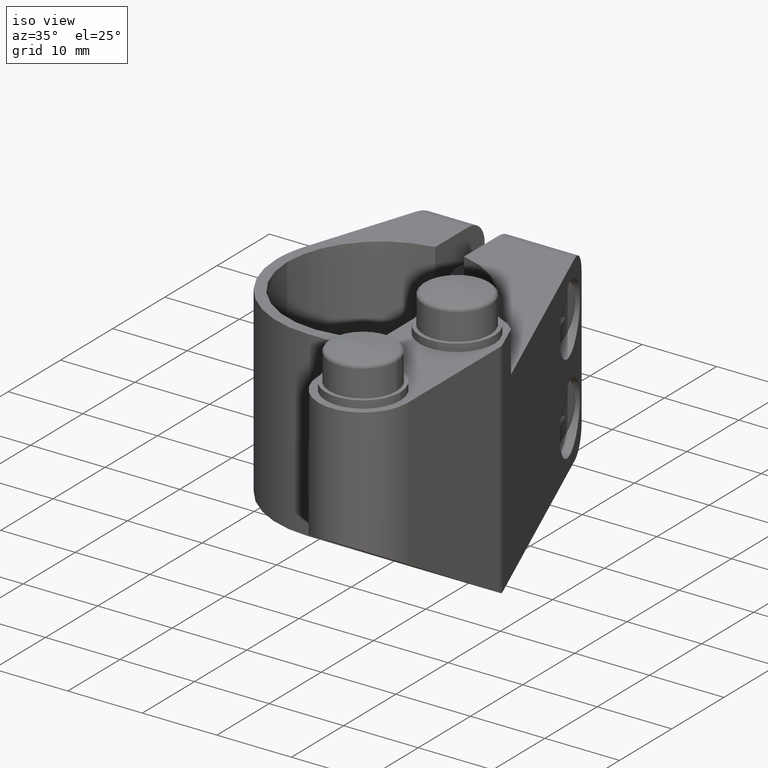
[diagram: clean part render]
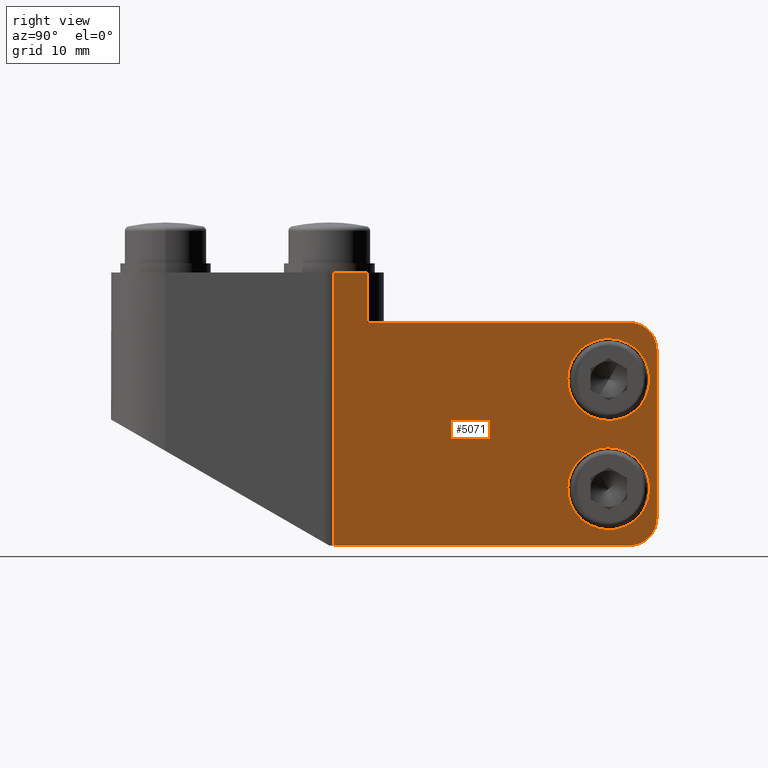
[diagram: tour spotlight — one face highlighted and labeled with its STEP entity id]
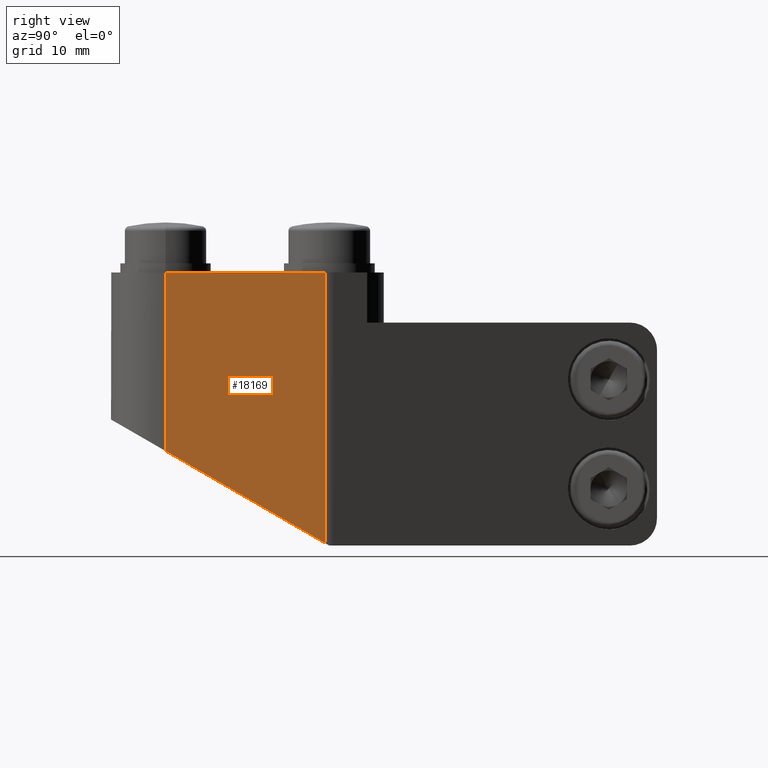
[diagram: tour spotlight — one face highlighted and labeled with its STEP entity id]
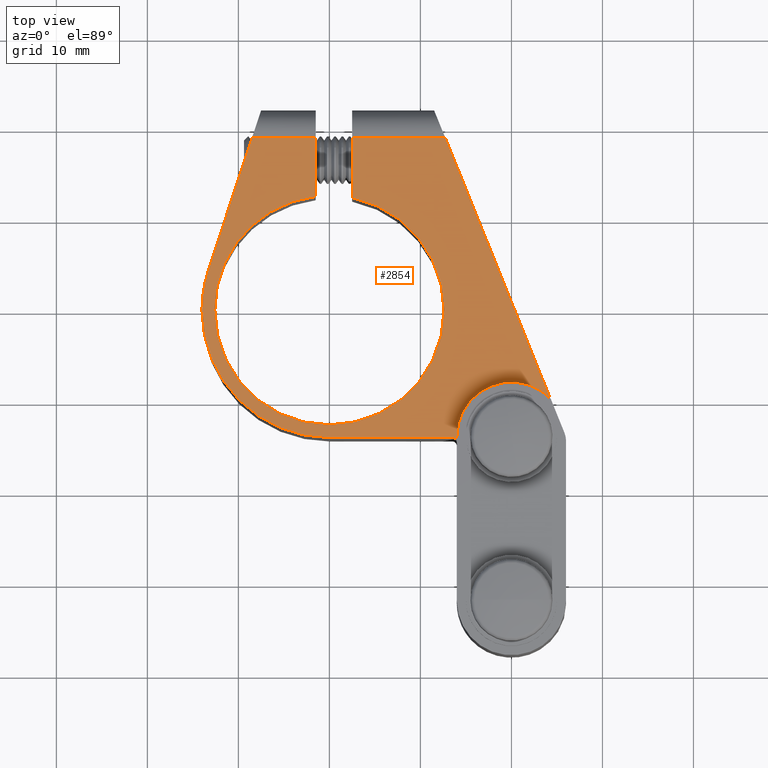
[diagram: tour spotlight — one face highlighted and labeled with its STEP entity id]
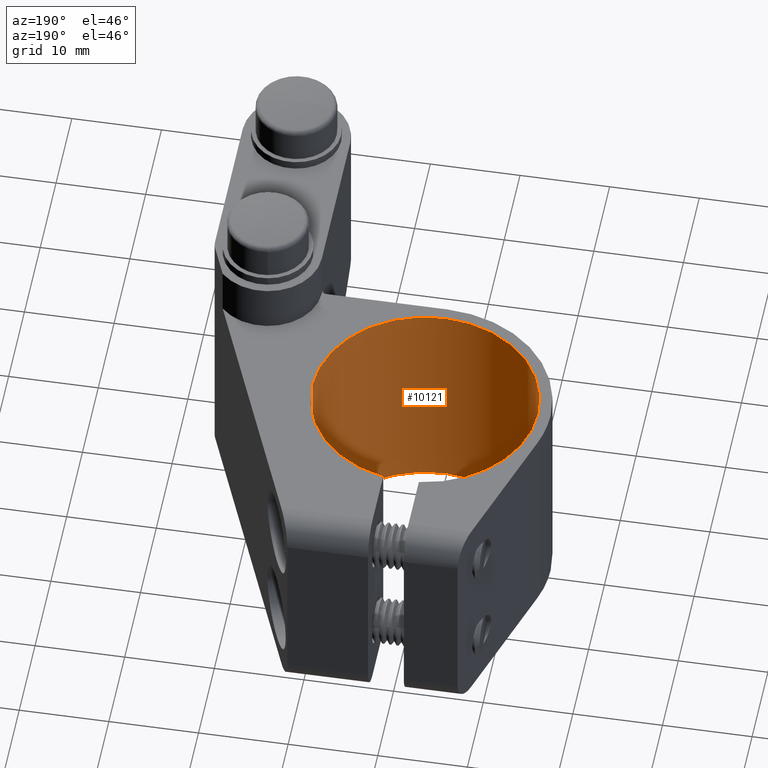
[diagram: tour spotlight — one face highlighted and labeled with its STEP entity id]
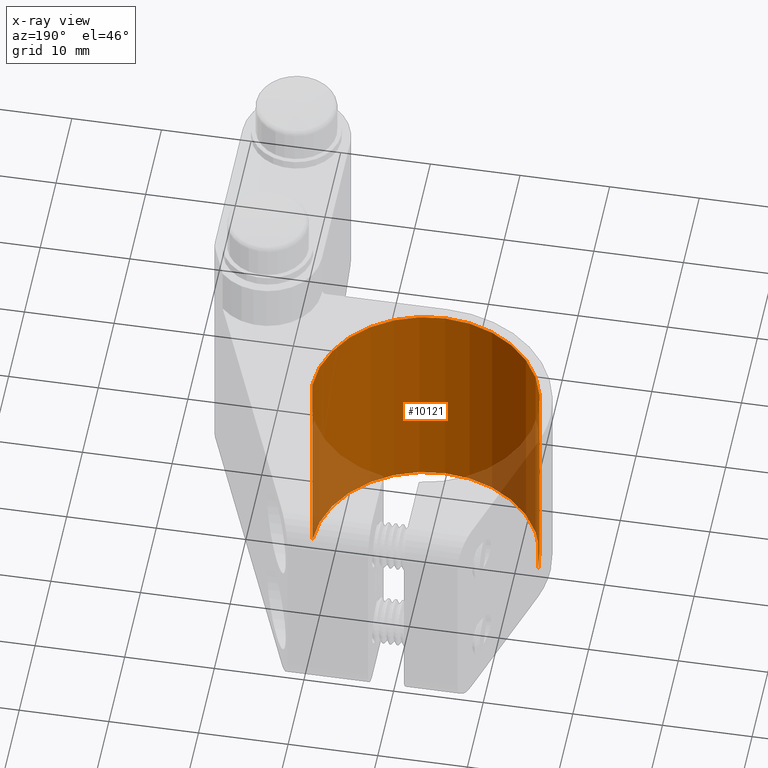
[diagram: x-ray of the same camera — body ghosted, this tour face saturated]
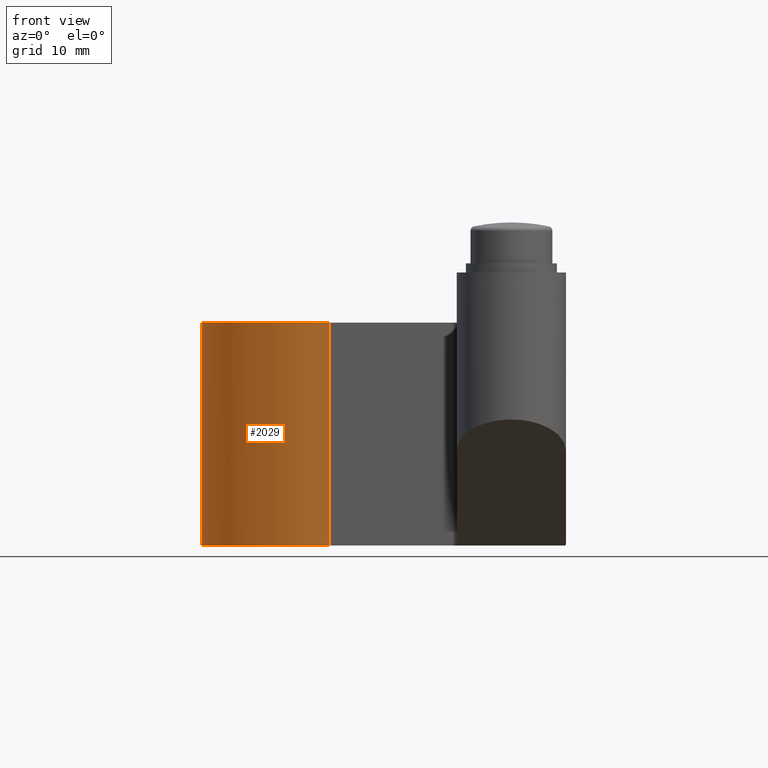
[diagram: tour spotlight — one face highlighted and labeled with its STEP entity id]
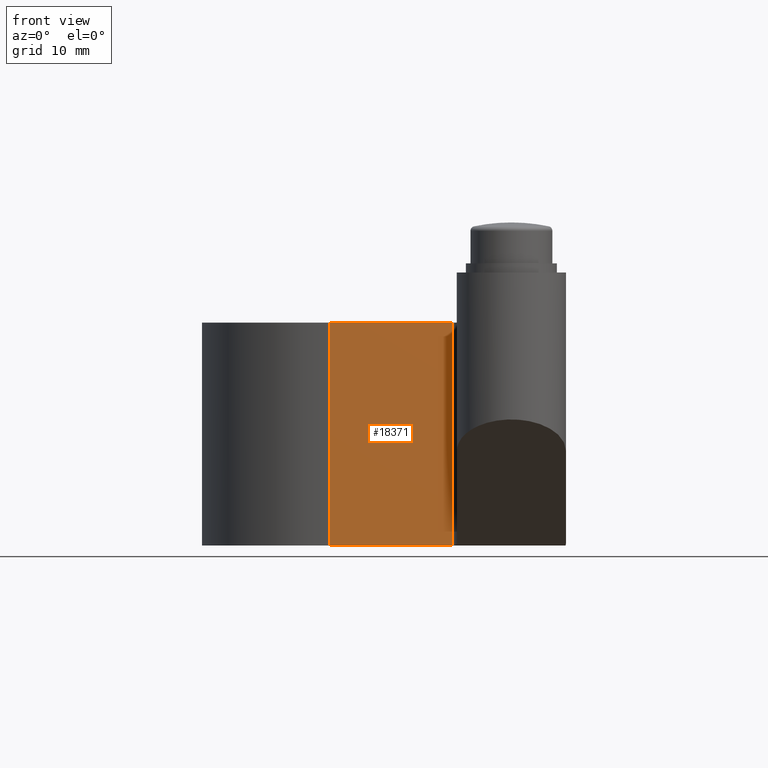
[diagram: tour spotlight — one face highlighted and labeled with its STEP entity id]
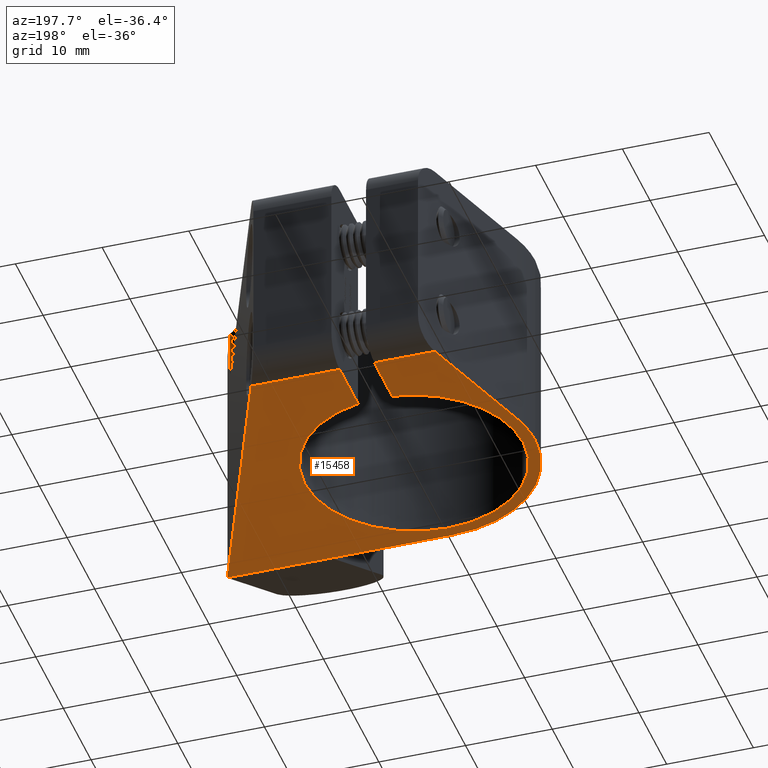
[diagram: tour spotlight — one face highlighted and labeled with its STEP entity id]
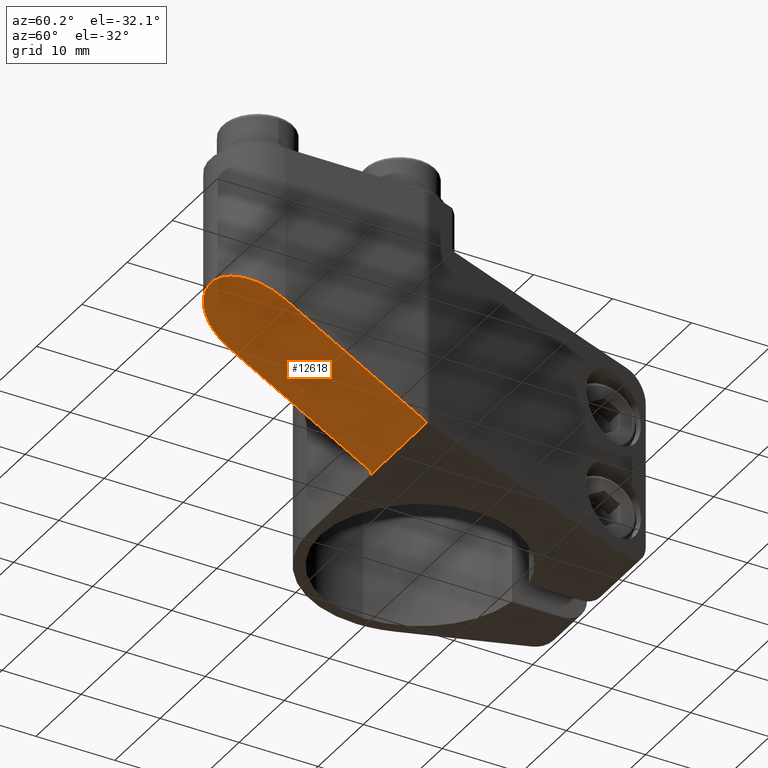
[diagram: tour spotlight — one face highlighted and labeled with its STEP entity id]
A machine part: a face-by-face anatomy tour. The part has 587 B-rep faces; the first image is the clean iso view, then the 8 largest visible faces are spotlighted one at a time (largest first), each with its STEP entity span.

Face 1 — right view, entity #5071. In plain terms, the highlighted planar face has unit normal (-0.9276, -0.3736, 0).
Definition (entity closure, byte-faithful):
#156 = VECTOR ( 'NONE', #1506, 1000.000000000000000 ) ;
#167 = DIRECTION ( 'NONE',  ( -0.3736108433124820700, 0.9275855420171963400, -0.0000000000000000000 ) ) ;
#525 = CARTESIAN_POINT ( 'NONE',  ( 25.81896385504299500, -13.55053095045156500, 17.75000000000000400 ) ) ;
#641 = CARTESIAN_POINT ( 'NONE',  ( 11.49999999999999600, 21.99999999999999600, -9.250000000000001800 ) ) ;
#776 = EDGE_CURVE ( 'NONE', #16145, #9897, #878, .T. ) ;
#779 = FACE_BOUND ( 'NONE', #2663, .T. ) ;
#878 =( BOUNDED_CURVE ( )  B_SPLINE_CURVE ( 3, ( #5187, #3345, #9414, #8066 ),
 .UNSPECIFIED., .F., .F. ) 
 B_SPLINE_CURVE_WITH_KNOTS ( ( 4, 4 ),
 ( 4.712388980384689700, 7.853981633974482800 ),
 .UNSPECIFIED. ) 
 CURVE ( )  GEOMETRIC_REPRESENTATION_ITEM ( )  RATIONAL_B_SPLINE_CURVE ( ( 1.000000000000000000, 0.3333333333333333700, 0.3333333333333333700, 1.000000000000000000 ) ) 
 REPRESENTATION_ITEM ( '' )  );
#1010 = VECTOR ( 'NONE', #167, 1000.000000000000200 ) ;
#1028 = CARTESIAN_POINT ( 'NONE',  ( 17.25972222222222300, 7.699999999999998400, -1.499999999999999600 ) ) ;
#1396 = VERTEX_POINT ( 'NONE', #18148 ) ;
#1506 = DIRECTION ( 'NONE',  ( -0.0000000000000000000, -0.0000000000000000000, -1.000000000000000000 ) ) ;
#1674 = CARTESIAN_POINT ( 'NONE',  ( 13.63472222222221800, 16.69999999999999900, -1.499999999999999600 ) ) ;
#2181 = CARTESIAN_POINT ( 'NONE',  ( 12.70833333333333000, 18.99999999999999600, -12.25000000000000000 ) ) ;
#2227 =( BOUNDED_CURVE ( )  B_SPLINE_CURVE ( 3, ( #10295, #8584, #1028, #2382 ),
 .UNSPECIFIED., .F., .F. ) 
 B_SPLINE_CURVE_WITH_KNOTS ( ( 4, 4 ),
 ( 4.712388980384689700, 7.853981633974482800 ),
 .UNSPECIFIED. ) 
 CURVE ( )  GEOMETRIC_REPRESENTATION_ITEM ( )  RATIONAL_B_SPLINE_CURVE ( ( 1.000000000000000000, 0.3333333333333333700, 0.3333333333333333700, 1.000000000000000000 ) ) 
 REPRESENTATION_ITEM ( '' )  );
#2260 = EDGE_CURVE ( 'NONE', #5280, #1396, #7834, .T. ) ;
#2289 = VERTEX_POINT ( 'NONE', #14069 ) ;
#2382 = CARTESIAN_POINT ( 'NONE',  ( 13.63472222222221800, 16.69999999999999900, -1.499999999999999600 ) ) ;
#2520 = EDGE_CURVE ( 'NONE', #5431, #3105, #19714, .T. ) ;
#2652 = DIRECTION ( 'NONE',  ( -0.3736108433124820700, 0.9275855420171963400, -0.0000000000000000000 ) ) ;
#2663 = EDGE_LOOP ( 'NONE', ( #6080, #9193 ) ) ;
#3001 = ORIENTED_EDGE ( 'NONE', *, *, #4731, .F. ) ;
#3092 = CARTESIAN_POINT ( 'NONE',  ( 13.63472222222221800, 16.69999999999999900, -10.50000000000000000 ) ) ;
#3105 = VERTEX_POINT ( 'NONE', #18213 ) ;
#3223 = CARTESIAN_POINT ( 'NONE',  ( 10.00972222222221600, 25.70000000000000300, -1.499999999999998200 ) ) ;
#3345 = CARTESIAN_POINT ( 'NONE',  ( 17.25972222222222300, 7.699999999999998400, 1.499999999999996900 ) ) ;
#3555 = ORIENTED_EDGE ( 'NONE', *, *, #17488, .T. ) ;
#3681 = ORIENTED_EDGE ( 'NONE', *, *, #9436, .T. ) ;
#3749 = CARTESIAN_POINT ( 'NONE',  ( 12.70833333333333000, 18.99999999999999600, -12.25000000000000000 ) ) ;
#3790 = VERTEX_POINT ( 'NONE', #13504 ) ;
#4047 = CARTESIAN_POINT ( 'NONE',  ( 13.63472222222221800, 16.69999999999999900, 10.50000000000000000 ) ) ;
#4088 = DIRECTION ( 'NONE',  ( -0.9275855420171964500, -0.3736108433124821200, 0.0000000000000000000 ) ) ;
#4213 = CARTESIAN_POINT ( 'NONE',  ( 11.49999999999999600, 21.99999999999999600, -12.25000000000000000 ) ) ;
#4731 = EDGE_CURVE ( 'NONE', #3105, #6493, #9222, .T. ) ;
#5066 = ORIENTED_EDGE ( 'NONE', *, *, #14103, .F. ) ;
#5071 = ADVANCED_FACE ( 'NONE', ( #18480, #779, #16779 ), #13585, .F. ) ;
#5187 = CARTESIAN_POINT ( 'NONE',  ( 13.63472222222221800, 16.69999999999999900, 1.499999999999999600 ) ) ;
#5280 = VERTEX_POINT ( 'NONE', #525 ) ;
#5431 = VERTEX_POINT ( 'NONE', #12995 ) ;
#5631 = CARTESIAN_POINT ( 'NONE',  ( 10.00972222222221600, 25.70000000000000300, 1.500000000000000400 ) ) ;
#5708 = VECTOR ( 'NONE', #17313, 1000.000000000000000 ) ;
#5721 = VERTEX_POINT ( 'NONE', #13731 ) ;
#5948 = CARTESIAN_POINT ( 'NONE',  ( 11.49999999999999600, 21.99999999999999600, 12.25000000000000000 ) ) ;
#6050 = ORIENTED_EDGE ( 'NONE', *, *, #8729, .T. ) ;
#6080 = ORIENTED_EDGE ( 'NONE', *, *, #776, .T. ) ;
#6493 = VERTEX_POINT ( 'NONE', #16957 ) ;
#7095 = ORIENTED_EDGE ( 'NONE', *, *, #18449, .F. ) ;
#7159 =( BOUNDED_CURVE ( )  B_SPLINE_CURVE ( 3, ( #1674, #3223, #15580, #3092 ),
 .UNSPECIFIED., .F., .F. ) 
 B_SPLINE_CURVE_WITH_KNOTS ( ( 4, 4 ),
 ( 1.570796326794896600, 4.712388980384689700 ),
 .UNSPECIFIED. ) 
 CURVE ( )  GEOMETRIC_REPRESENTATION_ITEM ( )  RATIONAL_B_SPLINE_CURVE ( ( 1.000000000000000000, 0.3333333333333333700, 0.3333333333333333700, 1.000000000000000000 ) ) 
 REPRESENTATION_ITEM ( '' )  );
#7790 =( BOUNDED_CURVE ( )  B_SPLINE_CURVE ( 3, ( #9565, #7935, #18793, #7796 ),
 .UNSPECIFIED., .F., .F. ) 
 B_SPLINE_CURVE_WITH_KNOTS ( ( 4, 4 ),
 ( 3.141592653589793100, 4.712388980384689700 ),
 .UNSPECIFIED. ) 
 CURVE ( )  GEOMETRIC_REPRESENTATION_ITEM ( )  RATIONAL_B_SPLINE_CURVE ( ( 1.000000000000000000, 0.8047378541243649400, 0.8047378541243649400, 1.000000000000000000 ) ) 
 REPRESENTATION_ITEM ( '' )  );
#7796 = CARTESIAN_POINT ( 'NONE',  ( 12.70833333333333000, 18.99999999999999600, 12.25000000000000000 ) ) ;
#7834 = LINE ( 'NONE', #13937, #5708 ) ;
#7935 = CARTESIAN_POINT ( 'NONE',  ( 11.49999999999999300, 22.00000000000000400, 11.00735931288071400 ) ) ;
#7950 = LINE ( 'NONE', #14249, #15255 ) ;
#8066 = CARTESIAN_POINT ( 'NONE',  ( 13.63472222222221800, 16.69999999999999900, 10.50000000000000000 ) ) ;
#8584 = CARTESIAN_POINT ( 'NONE',  ( 17.25972222222222300, 7.699999999999998400, -10.50000000000000400 ) ) ;
#8729 = EDGE_CURVE ( 'NONE', #5721, #6493, #7790, .T. ) ;
#8737 = CARTESIAN_POINT ( 'NONE',  ( 11.49999999999999600, 21.99999999999999600, 12.25000000000000000 ) ) ;
#9015 =( BOUNDED_CURVE ( )  B_SPLINE_CURVE ( 3, ( #4047, #19431, #5631, #18011 ),
 .UNSPECIFIED., .F., .F. ) 
 B_SPLINE_CURVE_WITH_KNOTS ( ( 4, 4 ),
 ( 1.570796326794896600, 4.712388980384689700 ),
 .UNSPECIFIED. ) 
 CURVE ( )  GEOMETRIC_REPRESENTATION_ITEM ( )  RATIONAL_B_SPLINE_CURVE ( ( 1.000000000000000000, 0.3333333333333333700, 0.3333333333333333700, 1.000000000000000000 ) ) 
 REPRESENTATION_ITEM ( '' )  );
#9193 = ORIENTED_EDGE ( 'NONE', *, *, #14689, .T. ) ;
#9222 = LINE ( 'NONE', #5948, #1010 ) ;
#9414 = CARTESIAN_POINT ( 'NONE',  ( 17.25972222222222300, 7.699999999999998400, 10.50000000000000200 ) ) ;
#9436 = EDGE_CURVE ( 'NONE', #1396, #11903, #17575, .T. ) ;
#9565 = CARTESIAN_POINT ( 'NONE',  ( 11.49999999999999600, 21.99999999999999600, 9.250000000000001800 ) ) ;
#9897 = VERTEX_POINT ( 'NONE', #13745 ) ;
#10295 = CARTESIAN_POINT ( 'NONE',  ( 13.63472222222221800, 16.69999999999999900, -10.50000000000000000 ) ) ;
#10517 = AXIS2_PLACEMENT_3D ( 'NONE', #8737, #4088, #16682 ) ;
#10615 = CARTESIAN_POINT ( 'NONE',  ( 24.32497925311203300, -9.841327800829875000, 17.75000000000000400 ) ) ;
#10846 = EDGE_CURVE ( 'NONE', #3790, #18407, #2227, .T. ) ;
#11613 = EDGE_CURVE ( 'NONE', #11903, #2289, #13411, .T. ) ;
#11903 = VERTEX_POINT ( 'NONE', #2181 ) ;
#12995 = CARTESIAN_POINT ( 'NONE',  ( 24.32497925311203300, -9.841327800829875000, 17.75000000000000400 ) ) ;
#13411 =( BOUNDED_CURVE ( )  B_SPLINE_CURVE ( 3, ( #3749, #19405, #16098, #641 ),
 .UNSPECIFIED., .F., .F. ) 
 B_SPLINE_CURVE_WITH_KNOTS ( ( 4, 4 ),
 ( 4.712388980384689700, 6.283185307179586200 ),
 .UNSPECIFIED. ) 
 CURVE ( )  GEOMETRIC_REPRESENTATION_ITEM ( )  RATIONAL_B_SPLINE_CURVE ( ( 1.000000000000000000, 0.8047378541243649400, 0.8047378541243649400, 1.000000000000000000 ) ) 
 REPRESENTATION_ITEM ( '' )  );
#13474 = LINE ( 'NONE', #19988, #156 ) ;
#13504 = CARTESIAN_POINT ( 'NONE',  ( 13.63472222222221800, 16.69999999999999900, -10.50000000000000000 ) ) ;
#13511 = CARTESIAN_POINT ( 'NONE',  ( 13.63472222222221800, 16.69999999999999900, -1.499999999999999600 ) ) ;
#13585 = PLANE ( 'NONE',  #10517 ) ;
#13731 = CARTESIAN_POINT ( 'NONE',  ( 11.49999999999999600, 21.99999999999999600, 9.250000000000001800 ) ) ;
#13745 = CARTESIAN_POINT ( 'NONE',  ( 13.63472222222221800, 16.69999999999999900, 10.50000000000000000 ) ) ;
#13937 = CARTESIAN_POINT ( 'NONE',  ( 25.81896385504299500, -13.55053095045155900, 12.25000000000000000 ) ) ;
#14069 = CARTESIAN_POINT ( 'NONE',  ( 11.49999999999999600, 21.99999999999999600, -9.250000000000001800 ) ) ;
#14103 = EDGE_CURVE ( 'NONE', #5280, #5431, #7950, .T. ) ;
#14249 = CARTESIAN_POINT ( 'NONE',  ( 26.00000000000000400, -14.00000000000000000, 17.75000000000000400 ) ) ;
#14689 = EDGE_CURVE ( 'NONE', #9897, #16145, #9015, .T. ) ;
#15189 = EDGE_LOOP ( 'NONE', ( #3555, #20016 ) ) ;
#15253 = ORIENTED_EDGE ( 'NONE', *, *, #2520, .F. ) ;
#15255 = VECTOR ( 'NONE', #18919, 1000.000000000000100 ) ;
#15373 = VECTOR ( 'NONE', #18443, 1000.000000000000000 ) ;
#15580 = CARTESIAN_POINT ( 'NONE',  ( 10.00972222222221600, 25.70000000000000300, -10.50000000000000000 ) ) ;
#16098 = CARTESIAN_POINT ( 'NONE',  ( 11.49999999999999300, 22.00000000000000400, -11.00735931288071400 ) ) ;
#16145 = VERTEX_POINT ( 'NONE', #18622 ) ;
#16653 = ORIENTED_EDGE ( 'NONE', *, *, #11613, .T. ) ;
#16682 = DIRECTION ( 'NONE',  ( 0.3736108433124820700, -0.9275855420171963400, 0.0000000000000000000 ) ) ;
#16779 = FACE_OUTER_BOUND ( 'NONE', #19664, .T. ) ;
#16957 = CARTESIAN_POINT ( 'NONE',  ( 12.70833333333333000, 18.99999999999999600, 12.25000000000000000 ) ) ;
#17090 = VECTOR ( 'NONE', #2652, 1000.000000000000200 ) ;
#17313 = DIRECTION ( 'NONE',  ( 0.0000000000000000000, 0.0000000000000000000, -1.000000000000000000 ) ) ;
#17488 = EDGE_CURVE ( 'NONE', #18407, #3790, #7159, .T. ) ;
#17575 = LINE ( 'NONE', #4213, #17090 ) ;
#18011 = CARTESIAN_POINT ( 'NONE',  ( 13.63472222222221800, 16.69999999999999900, 1.499999999999999600 ) ) ;
#18148 = CARTESIAN_POINT ( 'NONE',  ( 25.81896385504299500, -13.55053095045155900, -12.25000000000000000 ) ) ;
#18213 = CARTESIAN_POINT ( 'NONE',  ( 24.32497925311203300, -9.841327800829875000, 12.25000000000000000 ) ) ;
#18407 = VERTEX_POINT ( 'NONE', #13511 ) ;
#18443 = DIRECTION ( 'NONE',  ( -0.0000000000000000000, -0.0000000000000000000, -1.000000000000000000 ) ) ;
#18449 = EDGE_CURVE ( 'NONE', #5721, #2289, #13474, .T. ) ;
#18480 = FACE_BOUND ( 'NONE', #15189, .T. ) ;
#18622 = CARTESIAN_POINT ( 'NONE',  ( 13.63472222222221800, 16.69999999999999900, 1.499999999999999600 ) ) ;
#18793 = CARTESIAN_POINT ( 'NONE',  ( 12.00050805453415000, 20.75735931288070900, 12.25000000000000000 ) ) ;
#18919 = DIRECTION ( 'NONE',  ( -0.3736108433124819600, 0.9275855420171963400, 0.0000000000000000000 ) ) ;
#19405 = CARTESIAN_POINT ( 'NONE',  ( 12.00050805453415000, 20.75735931288070900, -12.25000000000000000 ) ) ;
#19431 = CARTESIAN_POINT ( 'NONE',  ( 10.00972222222221600, 25.70000000000000300, 10.50000000000000200 ) ) ;
#19664 = EDGE_LOOP ( 'NONE', ( #5066, #20036, #3681, #16653, #7095, #6050, #3001, #15253 ) ) ;
#19714 = LINE ( 'NONE', #10615, #15373 ) ;
#19988 = CARTESIAN_POINT ( 'NONE',  ( 11.49999999999999600, 21.99999999999999600, 12.25000000000000000 ) ) ;
#20016 = ORIENTED_EDGE ( 'NONE', *, *, #10846, .T. ) ;
#20036 = ORIENTED_EDGE ( 'NONE', *, *, #2260, .T. ) ;

Face 2 — right view, entity #18169. In plain terms, the highlighted planar face has unit normal (-1, -0, 0).
Definition (entity closure, byte-faithful):
#696 = VECTOR ( 'NONE', #5989, 1000.000000000000000 ) ;
#1014 = VECTOR ( 'NONE', #9706, 1000.000000000000000 ) ;
#1405 = ORIENTED_EDGE ( 'NONE', *, *, #14722, .F. ) ;
#2061 = LINE ( 'NONE', #15908, #5729 ) ;
#2921 = VERTEX_POINT ( 'NONE', #11570 ) ;
#3170 = LINE ( 'NONE', #8219, #1014 ) ;
#3416 = ORIENTED_EDGE ( 'NONE', *, *, #17755, .T. ) ;
#3540 = CARTESIAN_POINT ( 'NONE',  ( 26.00000000000000400, -14.00000000000000000, 12.25000000000000000 ) ) ;
#5221 = ORIENTED_EDGE ( 'NONE', *, *, #12801, .F. ) ;
#5652 = CARTESIAN_POINT ( 'NONE',  ( 26.00000000000000400, -13.99999999999999800, -12.25000000000000000 ) ) ;
#5729 = VECTOR ( 'NONE', #6625, 1000.000000000000000 ) ;
#5989 = DIRECTION ( 'NONE',  ( 1.251928832280970900E-016, -0.8660254037844417100, 0.4999999999999947800 ) ) ;
#6157 = EDGE_LOOP ( 'NONE', ( #1405, #10520, #5221, #3416 ) ) ;
#6524 = LINE ( 'NONE', #13397, #14037 ) ;
#6625 = DIRECTION ( 'NONE',  ( 0.0000000000000000000, 0.0000000000000000000, -1.000000000000000000 ) ) ;
#7215 = VERTEX_POINT ( 'NONE', #10439 ) ;
#7696 = LINE ( 'NONE', #5652, #696 ) ;
#8204 = EDGE_CURVE ( 'NONE', #16508, #7215, #6524, .T. ) ;
#8219 = CARTESIAN_POINT ( 'NONE',  ( 26.00000000000000700, -32.00000000000000000, 17.75000000000000400 ) ) ;
#9215 = CARTESIAN_POINT ( 'NONE',  ( 26.00000000000000400, -14.48455805873277000, -11.97024027435263500 ) ) ;
#9706 = DIRECTION ( 'NONE',  ( -1.927470528863118800E-016, 1.000000000000000000, 0.0000000000000000000 ) ) ;
#10439 = CARTESIAN_POINT ( 'NONE',  ( 26.00000000000000400, -14.48455805873277000, 17.75000000000000400 ) ) ;
#10520 = ORIENTED_EDGE ( 'NONE', *, *, #8204, .T. ) ;
#11422 = DIRECTION ( 'NONE',  ( 1.445602896647339200E-016, -1.000000000000000000, 0.0000000000000000000 ) ) ;
#11570 = CARTESIAN_POINT ( 'NONE',  ( 26.00000000000000700, -32.00000000000000000, 17.75000000000000400 ) ) ;
#11594 = VERTEX_POINT ( 'NONE', #17851 ) ;
#12801 = EDGE_CURVE ( 'NONE', #2921, #7215, #3170, .T. ) ;
#13345 = AXIS2_PLACEMENT_3D ( 'NONE', #3540, #16091, #11422 ) ;
#13397 = CARTESIAN_POINT ( 'NONE',  ( 26.00000000000000400, -14.48455805873277000, 12.25000000000000000 ) ) ;
#14037 = VECTOR ( 'NONE', #14939, 1000.000000000000000 ) ;
#14468 = FACE_OUTER_BOUND ( 'NONE', #6157, .T. ) ;
#14722 = EDGE_CURVE ( 'NONE', #16508, #11594, #7696, .T. ) ;
#14939 = DIRECTION ( 'NONE',  ( -0.0000000000000000000, -0.0000000000000000000, 1.000000000000000000 ) ) ;
#15908 = CARTESIAN_POINT ( 'NONE',  ( 26.00000000000000700, -32.00000000000000000, 12.25000000000000000 ) ) ;
#16091 = DIRECTION ( 'NONE',  ( -1.000000000000000000, -1.445602896647339200E-016, 0.0000000000000000000 ) ) ;
#16508 = VERTEX_POINT ( 'NONE', #9215 ) ;
#17240 = PLANE ( 'NONE',  #13345 ) ;
#17755 = EDGE_CURVE ( 'NONE', #2921, #11594, #2061, .T. ) ;
#17851 = CARTESIAN_POINT ( 'NONE',  ( 26.00000000000000700, -32.00000000000000000, -1.857695154586880900 ) ) ;
#18169 = ADVANCED_FACE ( 'NONE', ( #14468 ), #17240, .F. ) ;

Face 3 — top view, entity #2854. In plain terms, the highlighted planar face has unit normal (0, 0, 1).
Definition (entity closure, byte-faithful):
#62 = LINE ( 'NONE', #9856, #5651 ) ;
#167 = DIRECTION ( 'NONE',  ( -0.3736108433124820700, 0.9275855420171963400, -0.0000000000000000000 ) ) ;
#200 = CARTESIAN_POINT ( 'NONE',  ( 14.00000000000000500, -14.00000000000000000, 12.25000000000000000 ) ) ;
#1010 = VECTOR ( 'NONE', #167, 1000.000000000000200 ) ;
#1080 = DIRECTION ( 'NONE',  ( -0.0000000000000000000, -0.0000000000000000000, -1.000000000000000000 ) ) ;
#1163 = EDGE_CURVE ( 'NONE', #6167, #3415, #4742, .T. ) ;
#1248 = EDGE_LOOP ( 'NONE', ( #18680, #18397, #8412, #7609, #19351, #5987, #9323, #2210, #8837, #4993, #7160, #13249, #19284, #9931, #18843 ) ) ;
#1316 = EDGE_CURVE ( 'NONE', #3811, #15743, #16609, .T. ) ;
#1369 = DIRECTION ( 'NONE',  ( 0.0000000000000000000, 0.0000000000000000000, 1.000000000000000000 ) ) ;
#1573 = VERTEX_POINT ( 'NONE', #12057 ) ;
#1676 = VECTOR ( 'NONE', #7030, 1000.000000000000200 ) ;
#1826 = DIRECTION ( 'NONE',  ( 1.000000000000000000, 0.0000000000000000000, 0.0000000000000000000 ) ) ;
#2210 = ORIENTED_EDGE ( 'NONE', *, *, #4433, .T. ) ;
#2517 = CARTESIAN_POINT ( 'NONE',  ( -13.29870318760959000, 4.375442095133097500, 12.25000000000000000 ) ) ;
#2854 = ADVANCED_FACE ( 'NONE', ( #4967 ), #5688, .T. ) ;
#2916 = DIRECTION ( 'NONE',  ( 1.000000000000000000, 0.0000000000000000000, 0.0000000000000000000 ) ) ;
#3062 = VERTEX_POINT ( 'NONE', #15292 ) ;
#3105 = VERTEX_POINT ( 'NONE', #18213 ) ;
#3415 = VERTEX_POINT ( 'NONE', #5038 ) ;
#3733 = EDGE_CURVE ( 'NONE', #11135, #4388, #13657, .T. ) ;
#3811 = VERTEX_POINT ( 'NONE', #13962 ) ;
#3843 = VERTEX_POINT ( 'NONE', #16874 ) ;
#4048 = VERTEX_POINT ( 'NONE', #14503 ) ;
#4049 = CARTESIAN_POINT ( 'NONE',  ( -14.00000000000000500, 0.0000000000000000000, 12.25000000000000000 ) ) ;
#4054 = CARTESIAN_POINT ( 'NONE',  ( 2.499999999999998700, 22.00000000000000000, 12.25000000000000000 ) ) ;
#4388 = VERTEX_POINT ( 'NONE', #8360 ) ;
#4433 = EDGE_CURVE ( 'NONE', #6907, #3843, #62, .T. ) ;
#4731 = EDGE_CURVE ( 'NONE', #3105, #6493, #9222, .T. ) ;
#4742 = CIRCLE ( 'NONE', #7682, 12.60000000000000000 ) ;
#4967 = FACE_OUTER_BOUND ( 'NONE', #1248, .T. ) ;
#4993 = ORIENTED_EDGE ( 'NONE', *, *, #17007, .T. ) ;
#5038 = CARTESIAN_POINT ( 'NONE',  ( -1.500000000000001300, 12.51039567719582600, 12.25000000000000000 ) ) ;
#5499 = DIRECTION ( 'NONE',  ( -9.140125430773481600E-017, 1.000000000000000000, -0.0000000000000000000 ) ) ;
#5532 = LINE ( 'NONE', #4054, #6013 ) ;
#5555 = CARTESIAN_POINT ( 'NONE',  ( 0.0000000000000000000, 0.0000000000000000000, 12.25000000000000000 ) ) ;
#5651 = VECTOR ( 'NONE', #15985, 1000.000000000000000 ) ;
#5659 = CARTESIAN_POINT ( 'NONE',  ( 14.00000000000000500, -38.00000000000000700, 12.25000000000000000 ) ) ;
#5688 = PLANE ( 'NONE',  #10257 ) ;
#5788 = AXIS2_PLACEMENT_3D ( 'NONE', #15042, #1080, #18230 ) ;
#5948 = CARTESIAN_POINT ( 'NONE',  ( 11.49999999999999600, 21.99999999999999600, 12.25000000000000000 ) ) ;
#5958 = VECTOR ( 'NONE', #9659, 1000.000000000000000 ) ;
#5987 = ORIENTED_EDGE ( 'NONE', *, *, #1163, .T. ) ;
#6001 = DIRECTION ( 'NONE',  ( -0.0000000000000000000, -0.0000000000000000000, -1.000000000000000000 ) ) ;
#6013 = VECTOR ( 'NONE', #16447, 1000.000000000000000 ) ;
#6048 = DIRECTION ( 'NONE',  ( -0.0000000000000000000, -0.0000000000000000000, -1.000000000000000000 ) ) ;
#6167 = VERTEX_POINT ( 'NONE', #6727 ) ;
#6411 = AXIS2_PLACEMENT_3D ( 'NONE', #14337, #11198, #14262 ) ;
#6493 = VERTEX_POINT ( 'NONE', #16957 ) ;
#6578 = CARTESIAN_POINT ( 'NONE',  ( 0.0000000000000000000, 0.0000000000000000000, 12.25000000000000000 ) ) ;
#6618 = EDGE_CURVE ( 'NONE', #1573, #3062, #8221, .T. ) ;
#6727 = CARTESIAN_POINT ( 'NONE',  ( -12.60000000000000000, 0.0000000000000000000, 12.25000000000000000 ) ) ;
#6907 = VERTEX_POINT ( 'NONE', #13687 ) ;
#6995 = EDGE_CURVE ( 'NONE', #15743, #4388, #18891, .T. ) ;
#7030 = DIRECTION ( 'NONE',  ( -0.3125315782237929100, -0.9499073705435415700, -0.0000000000000000000 ) ) ;
#7160 = ORIENTED_EDGE ( 'NONE', *, *, #8789, .T. ) ;
#7609 = ORIENTED_EDGE ( 'NONE', *, *, #6618, .T. ) ;
#7651 = EDGE_CURVE ( 'NONE', #3843, #16887, #18667, .T. ) ;
#7682 = AXIS2_PLACEMENT_3D ( 'NONE', #18451, #6048, #2916 ) ;
#8221 = CIRCLE ( 'NONE', #8973, 12.60000000000000000 ) ;
#8360 = CARTESIAN_POINT ( 'NONE',  ( 14.00000000000000500, -14.49999999999999800, 12.25000000000000000 ) ) ;
#8412 = ORIENTED_EDGE ( 'NONE', *, *, #16012, .T. ) ;
#8731 = DIRECTION ( 'NONE',  ( 0.0000000000000000000, -1.000000000000000000, 0.0000000000000000000 ) ) ;
#8789 = EDGE_CURVE ( 'NONE', #9804, #3811, #15475, .T. ) ;
#8837 = ORIENTED_EDGE ( 'NONE', *, *, #7651, .T. ) ;
#8973 = AXIS2_PLACEMENT_3D ( 'NONE', #6578, #9537, #1826 ) ;
#9222 = LINE ( 'NONE', #5948, #1010 ) ;
#9323 = ORIENTED_EDGE ( 'NONE', *, *, #19081, .T. ) ;
#9537 = DIRECTION ( 'NONE',  ( -0.0000000000000000000, -0.0000000000000000000, -1.000000000000000000 ) ) ;
#9659 = DIRECTION ( 'NONE',  ( 1.000000000000000000, 3.717264591378871700E-016, -0.0000000000000000000 ) ) ;
#9804 = VERTEX_POINT ( 'NONE', #4049 ) ;
#9814 = LINE ( 'NONE', #10073, #15669 ) ;
#9856 = CARTESIAN_POINT ( 'NONE',  ( -7.500000000000002700, 18.99999999999999600, 12.25000000000000000 ) ) ;
#9931 = ORIENTED_EDGE ( 'NONE', *, *, #3733, .F. ) ;
#10073 = CARTESIAN_POINT ( 'NONE',  ( -1.500000000000002200, 21.99999999999999600, 12.25000000000000000 ) ) ;
#10257 = AXIS2_PLACEMENT_3D ( 'NONE', #5555, #16506, #19485 ) ;
#10436 = CARTESIAN_POINT ( 'NONE',  ( 13.50000000000000500, -14.00000000000000000, 12.25000000000000000 ) ) ;
#11135 = VERTEX_POINT ( 'NONE', #18893 ) ;
#11198 = DIRECTION ( 'NONE',  ( 0.0000000000000000000, 0.0000000000000000000, 1.000000000000000000 ) ) ;
#11491 = DIRECTION ( 'NONE',  ( 1.000000000000000000, 0.0000000000000000000, 0.0000000000000000000 ) ) ;
#11620 = AXIS2_PLACEMENT_3D ( 'NONE', #18471, #6001, #15480 ) ;
#12023 = CARTESIAN_POINT ( 'NONE',  ( 0.0000000000000000000, 0.0000000000000000000, 12.25000000000000000 ) ) ;
#12032 = CARTESIAN_POINT ( 'NONE',  ( 2.499999999999997300, 19.00000000000000000, 12.25000000000000000 ) ) ;
#12057 = CARTESIAN_POINT ( 'NONE',  ( 2.499999999999999600, 12.34949391675626600, 12.25000000000000000 ) ) ;
#12106 = CIRCLE ( 'NONE', #6411, 5.999999999999998200 ) ;
#13249 = ORIENTED_EDGE ( 'NONE', *, *, #1316, .T. ) ;
#13496 = CIRCLE ( 'NONE', #18392, 14.00000000000000500 ) ;
#13506 = DIRECTION ( 'NONE',  ( 1.000000000000000000, 0.0000000000000000000, 0.0000000000000000000 ) ) ;
#13557 = CARTESIAN_POINT ( 'NONE',  ( -13.29870318760959000, 4.375442095133101000, 12.25000000000000000 ) ) ;
#13577 = LINE ( 'NONE', #12032, #15749 ) ;
#13657 = LINE ( 'NONE', #5659, #19699 ) ;
#13687 = CARTESIAN_POINT ( 'NONE',  ( -1.500000000000002000, 18.99999999999999600, 12.25000000000000000 ) ) ;
#13932 = EDGE_CURVE ( 'NONE', #6493, #4048, #13577, .T. ) ;
#13962 = CARTESIAN_POINT ( 'NONE',  ( 1.714505518806294800E-015, -14.00000000000000500, 12.25000000000000000 ) ) ;
#14262 = DIRECTION ( 'NONE',  ( -1.000000000000000000, 0.0000000000000000000, 0.0000000000000000000 ) ) ;
#14337 = CARTESIAN_POINT ( 'NONE',  ( 20.00000000000000400, -14.00000000000000000, 12.25000000000000000 ) ) ;
#14503 = CARTESIAN_POINT ( 'NONE',  ( 2.499999999999999100, 19.00000000000000000, 12.25000000000000000 ) ) ;
#15042 = CARTESIAN_POINT ( 'NONE',  ( 13.50000000000000500, -14.49999999999999800, 12.25000000000000000 ) ) ;
#15292 = CARTESIAN_POINT ( 'NONE',  ( 12.60000000000000000, 1.543054966925665100E-015, 12.25000000000000000 ) ) ;
#15345 = EDGE_CURVE ( 'NONE', #3105, #11135, #12106, .T. ) ;
#15475 = CIRCLE ( 'NONE', #19415, 14.00000000000000500 ) ;
#15480 = DIRECTION ( 'NONE',  ( 1.000000000000000000, 0.0000000000000000000, 0.0000000000000000000 ) ) ;
#15669 = VECTOR ( 'NONE', #5499, 1000.000000000000000 ) ;
#15743 = VERTEX_POINT ( 'NONE', #10436 ) ;
#15749 = VECTOR ( 'NONE', #18052, 1000.000000000000000 ) ;
#15894 = CARTESIAN_POINT ( 'NONE',  ( 0.0000000000000000000, 0.0000000000000000000, 12.25000000000000000 ) ) ;
#15985 = DIRECTION ( 'NONE',  ( -1.000000000000000000, 0.0000000000000000000, 0.0000000000000000000 ) ) ;
#16012 = EDGE_CURVE ( 'NONE', #4048, #1573, #5532, .T. ) ;
#16434 = EDGE_CURVE ( 'NONE', #3062, #6167, #17130, .T. ) ;
#16447 = DIRECTION ( 'NONE',  ( 8.987733187323844200E-017, -1.000000000000000000, 0.0000000000000000000 ) ) ;
#16506 = DIRECTION ( 'NONE',  ( 0.0000000000000000000, 0.0000000000000000000, 1.000000000000000000 ) ) ;
#16609 = LINE ( 'NONE', #200, #5958 ) ;
#16874 = CARTESIAN_POINT ( 'NONE',  ( -8.487038066811592800, 18.99999999999999600, 12.25000000000000000 ) ) ;
#16887 = VERTEX_POINT ( 'NONE', #2517 ) ;
#16957 = CARTESIAN_POINT ( 'NONE',  ( 12.70833333333333000, 18.99999999999999600, 12.25000000000000000 ) ) ;
#17007 = EDGE_CURVE ( 'NONE', #16887, #9804, #13496, .T. ) ;
#17130 = CIRCLE ( 'NONE', #11620, 12.60000000000000000 ) ;
#18052 = DIRECTION ( 'NONE',  ( -1.000000000000000000, 3.854941057726239100E-016, 0.0000000000000000000 ) ) ;
#18213 = CARTESIAN_POINT ( 'NONE',  ( 24.32497925311203300, -9.841327800829875000, 12.25000000000000000 ) ) ;
#18230 = DIRECTION ( 'NONE',  ( 1.000000000000000000, 0.0000000000000000000, 0.0000000000000000000 ) ) ;
#18392 = AXIS2_PLACEMENT_3D ( 'NONE', #12023, #1369, #13506 ) ;
#18397 = ORIENTED_EDGE ( 'NONE', *, *, #13932, .T. ) ;
#18451 = CARTESIAN_POINT ( 'NONE',  ( 0.0000000000000000000, 0.0000000000000000000, 12.25000000000000000 ) ) ;
#18471 = CARTESIAN_POINT ( 'NONE',  ( 0.0000000000000000000, 0.0000000000000000000, 12.25000000000000000 ) ) ;
#18667 = LINE ( 'NONE', #13557, #1676 ) ;
#18680 = ORIENTED_EDGE ( 'NONE', *, *, #4731, .T. ) ;
#18843 = ORIENTED_EDGE ( 'NONE', *, *, #15345, .F. ) ;
#18891 = CIRCLE ( 'NONE', #5788, 0.5000000000000004400 ) ;
#18893 = CARTESIAN_POINT ( 'NONE',  ( 14.00000000000000500, -14.00000000000000000, 12.25000000000000000 ) ) ;
#19071 = DIRECTION ( 'NONE',  ( 0.0000000000000000000, 0.0000000000000000000, 1.000000000000000000 ) ) ;
#19081 = EDGE_CURVE ( 'NONE', #3415, #6907, #9814, .T. ) ;
#19284 = ORIENTED_EDGE ( 'NONE', *, *, #6995, .T. ) ;
#19351 = ORIENTED_EDGE ( 'NONE', *, *, #16434, .T. ) ;
#19415 = AXIS2_PLACEMENT_3D ( 'NONE', #15894, #19071, #11491 ) ;
#19485 = DIRECTION ( 'NONE',  ( 1.000000000000000000, 0.0000000000000000000, -0.0000000000000000000 ) ) ;
#19699 = VECTOR ( 'NONE', #8731, 1000.000000000000000 ) ;

Face 4 — auxiliary view, entity #10121. An x-ray twin of the same camera follows (body ghosted, this face saturated) — the face is partly hidden behind the body. In plain terms, the highlighted cylindrical surface (partial cylindrical patch) has radius 12.6 mm, axis along (-0, -0, -1).
Definition (entity closure, byte-faithful):
#576 = DIRECTION ( 'NONE',  ( -1.000000000000000000, 0.0000000000000000000, 0.0000000000000000000 ) ) ;
#1222 = CARTESIAN_POINT ( 'NONE',  ( -12.60000000000000000, 0.0000000000000000000, -12.25000000000000000 ) ) ;
#1548 = CYLINDRICAL_SURFACE ( 'NONE', #19287, 12.60000000000000000 ) ;
#2897 = VERTEX_POINT ( 'NONE', #18006 ) ;
#3062 = VERTEX_POINT ( 'NONE', #15292 ) ;
#5040 = ORIENTED_EDGE ( 'NONE', *, *, #9715, .T. ) ;
#5294 = VECTOR ( 'NONE', #15363, 1000.000000000000000 ) ;
#5538 = AXIS2_PLACEMENT_3D ( 'NONE', #12763, #6847, #17568 ) ;
#6001 = DIRECTION ( 'NONE',  ( -0.0000000000000000000, -0.0000000000000000000, -1.000000000000000000 ) ) ;
#6167 = VERTEX_POINT ( 'NONE', #6727 ) ;
#6727 = CARTESIAN_POINT ( 'NONE',  ( -12.60000000000000000, 0.0000000000000000000, 12.25000000000000000 ) ) ;
#6847 = DIRECTION ( 'NONE',  ( -0.0000000000000000000, -0.0000000000000000000, -1.000000000000000000 ) ) ;
#6927 = VERTEX_POINT ( 'NONE', #1222 ) ;
#6975 = EDGE_LOOP ( 'NONE', ( #12241, #5040, #19536, #12669 ) ) ;
#9313 = EDGE_CURVE ( 'NONE', #2897, #6927, #14429, .T. ) ;
#9715 = EDGE_CURVE ( 'NONE', #3062, #2897, #12480, .T. ) ;
#10121 = ADVANCED_FACE ( 'NONE', ( #16343 ), #1548, .F. ) ;
#11620 = AXIS2_PLACEMENT_3D ( 'NONE', #18471, #6001, #15480 ) ;
#12241 = ORIENTED_EDGE ( 'NONE', *, *, #16434, .F. ) ;
#12480 = LINE ( 'NONE', #19295, #14664 ) ;
#12669 = ORIENTED_EDGE ( 'NONE', *, *, #16040, .F. ) ;
#12763 = CARTESIAN_POINT ( 'NONE',  ( 0.0000000000000000000, 0.0000000000000000000, -12.25000000000000000 ) ) ;
#12886 = DIRECTION ( 'NONE',  ( -0.0000000000000000000, -0.0000000000000000000, -1.000000000000000000 ) ) ;
#14429 = CIRCLE ( 'NONE', #5538, 12.60000000000000000 ) ;
#14664 = VECTOR ( 'NONE', #12886, 1000.000000000000000 ) ;
#15292 = CARTESIAN_POINT ( 'NONE',  ( 12.60000000000000000, 1.543054966925665100E-015, 12.25000000000000000 ) ) ;
#15363 = DIRECTION ( 'NONE',  ( -0.0000000000000000000, -0.0000000000000000000, -1.000000000000000000 ) ) ;
#15480 = DIRECTION ( 'NONE',  ( 1.000000000000000000, 0.0000000000000000000, 0.0000000000000000000 ) ) ;
#15506 = CARTESIAN_POINT ( 'NONE',  ( -12.60000000000000000, 0.0000000000000000000, 12.25000000000000000 ) ) ;
#16040 = EDGE_CURVE ( 'NONE', #6167, #6927, #16413, .T. ) ;
#16343 = FACE_OUTER_BOUND ( 'NONE', #6975, .T. ) ;
#16413 = LINE ( 'NONE', #15506, #5294 ) ;
#16434 = EDGE_CURVE ( 'NONE', #3062, #6167, #17130, .T. ) ;
#17130 = CIRCLE ( 'NONE', #11620, 12.60000000000000000 ) ;
#17568 = DIRECTION ( 'NONE',  ( 1.000000000000000000, 0.0000000000000000000, 0.0000000000000000000 ) ) ;
#17652 = CARTESIAN_POINT ( 'NONE',  ( 0.0000000000000000000, 0.0000000000000000000, 12.25000000000000000 ) ) ;
#18006 = CARTESIAN_POINT ( 'NONE',  ( 12.60000000000000000, 1.543054966925665100E-015, -12.25000000000000000 ) ) ;
#18471 = CARTESIAN_POINT ( 'NONE',  ( 0.0000000000000000000, 0.0000000000000000000, 12.25000000000000000 ) ) ;
#19217 = DIRECTION ( 'NONE',  ( -0.0000000000000000000, -0.0000000000000000000, -1.000000000000000000 ) ) ;
#19287 = AXIS2_PLACEMENT_3D ( 'NONE', #17652, #19217, #576 ) ;
#19295 = CARTESIAN_POINT ( 'NONE',  ( 12.60000000000000000, 1.543054966925665100E-015, 12.25000000000000000 ) ) ;
#19536 = ORIENTED_EDGE ( 'NONE', *, *, #9313, .T. ) ;

Face 5 — front view, entity #2029. In plain terms, the highlighted cylindrical surface (partial cylindrical patch) has radius 14 mm, axis along (-0, -0, -1).
Definition (entity closure, byte-faithful):
#111 = FACE_OUTER_BOUND ( 'NONE', #6295, .T. ) ;
#567 = EDGE_CURVE ( 'NONE', #9804, #8077, #9833, .T. ) ;
#857 = CARTESIAN_POINT ( 'NONE',  ( -14.00000000000000500, 0.0000000000000000000, -12.25000000000000000 ) ) ;
#1088 = ORIENTED_EDGE ( 'NONE', *, *, #8789, .F. ) ;
#1117 = VECTOR ( 'NONE', #15244, 1000.000000000000000 ) ;
#2029 = ADVANCED_FACE ( 'NONE', ( #111 ), #18546, .T. ) ;
#2285 = DIRECTION ( 'NONE',  ( -0.0000000000000000000, -0.0000000000000000000, -1.000000000000000000 ) ) ;
#2618 = DIRECTION ( 'NONE',  ( -1.000000000000000000, 0.0000000000000000000, 0.0000000000000000000 ) ) ;
#3811 = VERTEX_POINT ( 'NONE', #13962 ) ;
#4033 = LINE ( 'NONE', #4339, #1117 ) ;
#4049 = CARTESIAN_POINT ( 'NONE',  ( -14.00000000000000500, 0.0000000000000000000, 12.25000000000000000 ) ) ;
#4273 = AXIS2_PLACEMENT_3D ( 'NONE', #6554, #2285, #2618 ) ;
#4339 = CARTESIAN_POINT ( 'NONE',  ( 1.714505518806294800E-015, -14.00000000000000500, 12.25000000000000000 ) ) ;
#4775 = ORIENTED_EDGE ( 'NONE', *, *, #9867, .T. ) ;
#6295 = EDGE_LOOP ( 'NONE', ( #1088, #11922, #4775, #14329 ) ) ;
#6554 = CARTESIAN_POINT ( 'NONE',  ( 0.0000000000000000000, 0.0000000000000000000, 12.25000000000000000 ) ) ;
#8077 = VERTEX_POINT ( 'NONE', #857 ) ;
#8368 = VECTOR ( 'NONE', #17185, 1000.000000000000000 ) ;
#8789 = EDGE_CURVE ( 'NONE', #9804, #3811, #15475, .T. ) ;
#9434 = CARTESIAN_POINT ( 'NONE',  ( -14.00000000000000500, 0.0000000000000000000, 12.25000000000000000 ) ) ;
#9804 = VERTEX_POINT ( 'NONE', #4049 ) ;
#9833 = LINE ( 'NONE', #9434, #8368 ) ;
#9867 = EDGE_CURVE ( 'NONE', #8077, #13775, #10518, .T. ) ;
#10518 = CIRCLE ( 'NONE', #10966, 14.00000000000000500 ) ;
#10597 = DIRECTION ( 'NONE',  ( 0.0000000000000000000, 0.0000000000000000000, 1.000000000000000000 ) ) ;
#10966 = AXIS2_PLACEMENT_3D ( 'NONE', #19828, #10597, #15302 ) ;
#11294 = CARTESIAN_POINT ( 'NONE',  ( 1.714505518806294800E-015, -14.00000000000000500, -12.25000000000000000 ) ) ;
#11491 = DIRECTION ( 'NONE',  ( 1.000000000000000000, 0.0000000000000000000, 0.0000000000000000000 ) ) ;
#11922 = ORIENTED_EDGE ( 'NONE', *, *, #567, .T. ) ;
#13775 = VERTEX_POINT ( 'NONE', #11294 ) ;
#13962 = CARTESIAN_POINT ( 'NONE',  ( 1.714505518806294800E-015, -14.00000000000000500, 12.25000000000000000 ) ) ;
#14329 = ORIENTED_EDGE ( 'NONE', *, *, #17457, .F. ) ;
#15244 = DIRECTION ( 'NONE',  ( -0.0000000000000000000, -0.0000000000000000000, -1.000000000000000000 ) ) ;
#15302 = DIRECTION ( 'NONE',  ( 1.000000000000000000, 0.0000000000000000000, 0.0000000000000000000 ) ) ;
#15475 = CIRCLE ( 'NONE', #19415, 14.00000000000000500 ) ;
#15894 = CARTESIAN_POINT ( 'NONE',  ( 0.0000000000000000000, 0.0000000000000000000, 12.25000000000000000 ) ) ;
#17185 = DIRECTION ( 'NONE',  ( -0.0000000000000000000, -0.0000000000000000000, -1.000000000000000000 ) ) ;
#17457 = EDGE_CURVE ( 'NONE', #3811, #13775, #4033, .T. ) ;
#18546 = CYLINDRICAL_SURFACE ( 'NONE', #4273, 14.00000000000000500 ) ;
#19071 = DIRECTION ( 'NONE',  ( 0.0000000000000000000, 0.0000000000000000000, 1.000000000000000000 ) ) ;
#19415 = AXIS2_PLACEMENT_3D ( 'NONE', #15894, #19071, #11491 ) ;
#19828 = CARTESIAN_POINT ( 'NONE',  ( 0.0000000000000000000, 0.0000000000000000000, -12.25000000000000000 ) ) ;

Face 6 — front view, entity #18371. In plain terms, the highlighted planar face has unit normal (-0, 1, 0).
Definition (entity closure, byte-faithful):
#200 = CARTESIAN_POINT ( 'NONE',  ( 14.00000000000000500, -14.00000000000000000, 12.25000000000000000 ) ) ;
#891 = VECTOR ( 'NONE', #8534, 1000.000000000000000 ) ;
#901 = CARTESIAN_POINT ( 'NONE',  ( 13.50000000000000500, -14.00000000000000000, 12.25000000000000000 ) ) ;
#1041 = PLANE ( 'NONE',  #5820 ) ;
#1117 = VECTOR ( 'NONE', #15244, 1000.000000000000000 ) ;
#1304 = EDGE_LOOP ( 'NONE', ( #4811, #18450, #8418, #8879 ) ) ;
#1316 = EDGE_CURVE ( 'NONE', #3811, #15743, #16609, .T. ) ;
#2661 = DIRECTION ( 'NONE',  ( -1.000000000000000000, -3.717264591378871700E-016, 0.0000000000000000000 ) ) ;
#2965 = LINE ( 'NONE', #18884, #15576 ) ;
#3811 = VERTEX_POINT ( 'NONE', #13962 ) ;
#4033 = LINE ( 'NONE', #4339, #1117 ) ;
#4339 = CARTESIAN_POINT ( 'NONE',  ( 1.714505518806294800E-015, -14.00000000000000500, 12.25000000000000000 ) ) ;
#4343 = EDGE_CURVE ( 'NONE', #13775, #19097, #2965, .T. ) ;
#4811 = ORIENTED_EDGE ( 'NONE', *, *, #4343, .T. ) ;
#5820 = AXIS2_PLACEMENT_3D ( 'NONE', #12165, #15065, #2661 ) ;
#5958 = VECTOR ( 'NONE', #9659, 1000.000000000000000 ) ;
#8418 = ORIENTED_EDGE ( 'NONE', *, *, #1316, .F. ) ;
#8534 = DIRECTION ( 'NONE',  ( -0.0000000000000000000, -0.0000000000000000000, 1.000000000000000000 ) ) ;
#8879 = ORIENTED_EDGE ( 'NONE', *, *, #17457, .T. ) ;
#9659 = DIRECTION ( 'NONE',  ( 1.000000000000000000, 3.717264591378871700E-016, -0.0000000000000000000 ) ) ;
#9832 = LINE ( 'NONE', #901, #891 ) ;
#10436 = CARTESIAN_POINT ( 'NONE',  ( 13.50000000000000500, -14.00000000000000000, 12.25000000000000000 ) ) ;
#11294 = CARTESIAN_POINT ( 'NONE',  ( 1.714505518806294800E-015, -14.00000000000000500, -12.25000000000000000 ) ) ;
#12165 = CARTESIAN_POINT ( 'NONE',  ( 14.00000000000000500, -14.00000000000000000, 12.25000000000000000 ) ) ;
#13775 = VERTEX_POINT ( 'NONE', #11294 ) ;
#13962 = CARTESIAN_POINT ( 'NONE',  ( 1.714505518806294800E-015, -14.00000000000000500, 12.25000000000000000 ) ) ;
#14217 = DIRECTION ( 'NONE',  ( 1.000000000000000000, 3.717264591378871700E-016, -0.0000000000000000000 ) ) ;
#15065 = DIRECTION ( 'NONE',  ( -3.717264591378871700E-016, 1.000000000000000000, 0.0000000000000000000 ) ) ;
#15244 = DIRECTION ( 'NONE',  ( -0.0000000000000000000, -0.0000000000000000000, -1.000000000000000000 ) ) ;
#15576 = VECTOR ( 'NONE', #14217, 1000.000000000000000 ) ;
#15743 = VERTEX_POINT ( 'NONE', #10436 ) ;
#16159 = FACE_OUTER_BOUND ( 'NONE', #1304, .T. ) ;
#16609 = LINE ( 'NONE', #200, #5958 ) ;
#16952 = EDGE_CURVE ( 'NONE', #19097, #15743, #9832, .T. ) ;
#17457 = EDGE_CURVE ( 'NONE', #3811, #13775, #4033, .T. ) ;
#18371 = ADVANCED_FACE ( 'NONE', ( #16159 ), #1041, .F. ) ;
#18450 = ORIENTED_EDGE ( 'NONE', *, *, #16952, .T. ) ;
#18884 = CARTESIAN_POINT ( 'NONE',  ( 14.00000000000000500, -14.00000000000000000, -12.25000000000000000 ) ) ;
#19097 = VERTEX_POINT ( 'NONE', #19561 ) ;
#19561 = CARTESIAN_POINT ( 'NONE',  ( 13.50000000000000500, -14.00000000000000000, -12.25000000000000000 ) ) ;

Face 7 — auxiliary view, entity #15458. In plain terms, the highlighted planar face has unit normal (0, 0, 1).
Definition (entity closure, byte-faithful):
#178 = CARTESIAN_POINT ( 'NONE',  ( -13.29870318760959000, 4.375442095133101000, -12.25000000000000000 ) ) ;
#270 = EDGE_CURVE ( 'NONE', #1659, #11903, #9101, .T. ) ;
#320 = ORIENTED_EDGE ( 'NONE', *, *, #10018, .F. ) ;
#377 = LINE ( 'NONE', #8266, #14688 ) ;
#562 = VECTOR ( 'NONE', #13654, 1000.000000000000000 ) ;
#682 = EDGE_CURVE ( 'NONE', #2347, #13803, #377, .T. ) ;
#857 = CARTESIAN_POINT ( 'NONE',  ( -14.00000000000000500, 0.0000000000000000000, -12.25000000000000000 ) ) ;
#942 = DIRECTION ( 'NONE',  ( 1.000000000000000000, -3.854941057726239100E-016, -0.0000000000000000000 ) ) ;
#1102 = VECTOR ( 'NONE', #18637, 1000.000000000000000 ) ;
#1195 = EDGE_CURVE ( 'NONE', #4910, #13803, #16847, .T. ) ;
#1222 = CARTESIAN_POINT ( 'NONE',  ( -12.60000000000000000, 0.0000000000000000000, -12.25000000000000000 ) ) ;
#1396 = VERTEX_POINT ( 'NONE', #18148 ) ;
#1531 = CIRCLE ( 'NONE', #16556, 14.00000000000000500 ) ;
#1659 = VERTEX_POINT ( 'NONE', #11464 ) ;
#1685 = ORIENTED_EDGE ( 'NONE', *, *, #18476, .F. ) ;
#1947 = CIRCLE ( 'NONE', #15563, 12.60000000000000000 ) ;
#2034 = VECTOR ( 'NONE', #10997, 1000.000000000000200 ) ;
#2048 = PLANE ( 'NONE',  #13313 ) ;
#2058 = CARTESIAN_POINT ( 'NONE',  ( -14.00000000000000500, -14.00000000000000400, -12.25000000000000000 ) ) ;
#2181 = CARTESIAN_POINT ( 'NONE',  ( 12.70833333333333000, 18.99999999999999600, -12.25000000000000000 ) ) ;
#2347 = VERTEX_POINT ( 'NONE', #18656 ) ;
#2359 = CARTESIAN_POINT ( 'NONE',  ( 7.324388009679854500E-015, 19.00000000000000000, -12.25000000000000000 ) ) ;
#2625 = ORIENTED_EDGE ( 'NONE', *, *, #11813, .F. ) ;
#2646 = VERTEX_POINT ( 'NONE', #14299 ) ;
#2652 = DIRECTION ( 'NONE',  ( -0.3736108433124820700, 0.9275855420171963400, -0.0000000000000000000 ) ) ;
#2897 = VERTEX_POINT ( 'NONE', #18006 ) ;
#2965 = LINE ( 'NONE', #18884, #15576 ) ;
#3122 = ORIENTED_EDGE ( 'NONE', *, *, #682, .T. ) ;
#3624 = DIRECTION ( 'NONE',  ( 1.000000000000000000, 1.445602896647339400E-016, -0.0000000000000000000 ) ) ;
#3705 = AXIS2_PLACEMENT_3D ( 'NONE', #10701, #18390, #4561 ) ;
#3798 = ORIENTED_EDGE ( 'NONE', *, *, #12737, .F. ) ;
#3800 = DIRECTION ( 'NONE',  ( -0.0000000000000000000, -0.0000000000000000000, -1.000000000000000000 ) ) ;
#3808 = DIRECTION ( 'NONE',  ( 0.0000000000000000000, 0.0000000000000000000, 1.000000000000000000 ) ) ;
#3880 = VERTEX_POINT ( 'NONE', #9063 ) ;
#3885 = CARTESIAN_POINT ( 'NONE',  ( -1.500000000000001300, 12.51039567719582600, -12.25000000000000000 ) ) ;
#4213 = CARTESIAN_POINT ( 'NONE',  ( 11.49999999999999600, 21.99999999999999600, -12.25000000000000000 ) ) ;
#4343 = EDGE_CURVE ( 'NONE', #13775, #19097, #2965, .T. ) ;
#4352 = ORIENTED_EDGE ( 'NONE', *, *, #9867, .F. ) ;
#4447 = DIRECTION ( 'NONE',  ( -0.0000000000000000000, -0.0000000000000000000, -1.000000000000000000 ) ) ;
#4561 = DIRECTION ( 'NONE',  ( 1.000000000000000000, 0.0000000000000000000, 0.0000000000000000000 ) ) ;
#4910 = VERTEX_POINT ( 'NONE', #3885 ) ;
#5070 = ORIENTED_EDGE ( 'NONE', *, *, #13338, .F. ) ;
#5538 = AXIS2_PLACEMENT_3D ( 'NONE', #12763, #6847, #17568 ) ;
#5586 = ORIENTED_EDGE ( 'NONE', *, *, #9436, .F. ) ;
#5604 = EDGE_CURVE ( 'NONE', #1396, #2646, #8722, .T. ) ;
#6499 = ORIENTED_EDGE ( 'NONE', *, *, #1195, .F. ) ;
#6504 = FACE_OUTER_BOUND ( 'NONE', #8790, .T. ) ;
#6629 = CARTESIAN_POINT ( 'NONE',  ( -1.500000000000002000, 18.99999999999999600, -12.25000000000000000 ) ) ;
#6795 = ORIENTED_EDGE ( 'NONE', *, *, #5604, .T. ) ;
#6800 = ORIENTED_EDGE ( 'NONE', *, *, #270, .T. ) ;
#6847 = DIRECTION ( 'NONE',  ( -0.0000000000000000000, -0.0000000000000000000, -1.000000000000000000 ) ) ;
#6927 = VERTEX_POINT ( 'NONE', #1222 ) ;
#7042 = CARTESIAN_POINT ( 'NONE',  ( 0.0000000000000000000, 0.0000000000000000000, -12.25000000000000000 ) ) ;
#8058 = DIRECTION ( 'NONE',  ( 1.000000000000000000, -0.0000000000000000000, -0.0000000000000000000 ) ) ;
#8077 = VERTEX_POINT ( 'NONE', #857 ) ;
#8266 = CARTESIAN_POINT ( 'NONE',  ( 0.0000000000000000000, 18.99999999999999600, -12.25000000000000000 ) ) ;
#8387 = ORIENTED_EDGE ( 'NONE', *, *, #10784, .F. ) ;
#8524 = DIRECTION ( 'NONE',  ( 0.0000000000000000000, 0.0000000000000000000, 1.000000000000000000 ) ) ;
#8722 = CIRCLE ( 'NONE', #18472, 2.499999999999998700 ) ;
#8790 = EDGE_LOOP ( 'NONE', ( #5586, #6795, #3798, #15723, #4352, #8387, #320, #3122, #6499, #1685, #15607, #5070, #2625, #6800 ) ) ;
#9063 = CARTESIAN_POINT ( 'NONE',  ( -13.29870318760959000, 4.375442095133097500, -12.25000000000000000 ) ) ;
#9084 = CARTESIAN_POINT ( 'NONE',  ( 2.499999999999999600, 12.34949391675626600, -12.25000000000000000 ) ) ;
#9101 = LINE ( 'NONE', #2359, #13497 ) ;
#9123 = CARTESIAN_POINT ( 'NONE',  ( -1.500000000000002200, 21.99999999999999600, -12.25000000000000000 ) ) ;
#9208 = CARTESIAN_POINT ( 'NONE',  ( 2.499999999999998700, 22.00000000000000000, -12.25000000000000000 ) ) ;
#9313 = EDGE_CURVE ( 'NONE', #2897, #6927, #14429, .T. ) ;
#9436 = EDGE_CURVE ( 'NONE', #1396, #11903, #17575, .T. ) ;
#9720 = VECTOR ( 'NONE', #3624, 1000.000000000000000 ) ;
#9867 = EDGE_CURVE ( 'NONE', #8077, #13775, #10518, .T. ) ;
#10018 = EDGE_CURVE ( 'NONE', #2347, #3880, #14885, .T. ) ;
#10518 = CIRCLE ( 'NONE', #10966, 14.00000000000000500 ) ;
#10597 = DIRECTION ( 'NONE',  ( 0.0000000000000000000, 0.0000000000000000000, 1.000000000000000000 ) ) ;
#10701 = CARTESIAN_POINT ( 'NONE',  ( 0.0000000000000000000, 0.0000000000000000000, -12.25000000000000000 ) ) ;
#10784 = EDGE_CURVE ( 'NONE', #3880, #8077, #1531, .T. ) ;
#10966 = AXIS2_PLACEMENT_3D ( 'NONE', #19828, #10597, #15302 ) ;
#10997 = DIRECTION ( 'NONE',  ( -0.3125315782237929100, -0.9499073705435415700, -0.0000000000000000000 ) ) ;
#11294 = CARTESIAN_POINT ( 'NONE',  ( 1.714505518806294800E-015, -14.00000000000000500, -12.25000000000000000 ) ) ;
#11464 = CARTESIAN_POINT ( 'NONE',  ( 2.499999999999999100, 19.00000000000000000, -12.25000000000000000 ) ) ;
#11813 = EDGE_CURVE ( 'NONE', #1659, #16701, #18737, .T. ) ;
#11903 = VERTEX_POINT ( 'NONE', #2181 ) ;
#12737 = EDGE_CURVE ( 'NONE', #19097, #2646, #19670, .T. ) ;
#12763 = CARTESIAN_POINT ( 'NONE',  ( 0.0000000000000000000, 0.0000000000000000000, -12.25000000000000000 ) ) ;
#13111 = CARTESIAN_POINT ( 'NONE',  ( 0.0000000000000000000, 0.0000000000000000000, -12.25000000000000000 ) ) ;
#13313 = AXIS2_PLACEMENT_3D ( 'NONE', #13111, #3808, #19133 ) ;
#13338 = EDGE_CURVE ( 'NONE', #16701, #2897, #1947, .T. ) ;
#13497 = VECTOR ( 'NONE', #942, 1000.000000000000000 ) ;
#13654 = DIRECTION ( 'NONE',  ( 8.987733187323844200E-017, -1.000000000000000000, 0.0000000000000000000 ) ) ;
#13775 = VERTEX_POINT ( 'NONE', #11294 ) ;
#13803 = VERTEX_POINT ( 'NONE', #6629 ) ;
#14217 = DIRECTION ( 'NONE',  ( 1.000000000000000000, 3.717264591378871700E-016, -0.0000000000000000000 ) ) ;
#14299 = CARTESIAN_POINT ( 'NONE',  ( 25.95259117826781300, -13.99999999999999800, -12.25000000000000000 ) ) ;
#14429 = CIRCLE ( 'NONE', #5538, 12.60000000000000000 ) ;
#14688 = VECTOR ( 'NONE', #8058, 1000.000000000000000 ) ;
#14885 = LINE ( 'NONE', #178, #2034 ) ;
#14944 = CIRCLE ( 'NONE', #3705, 12.60000000000000000 ) ;
#15302 = DIRECTION ( 'NONE',  ( 1.000000000000000000, 0.0000000000000000000, 0.0000000000000000000 ) ) ;
#15458 = ADVANCED_FACE ( 'NONE', ( #6504 ), #2048, .F. ) ;
#15563 = AXIS2_PLACEMENT_3D ( 'NONE', #17901, #3800, #16139 ) ;
#15576 = VECTOR ( 'NONE', #14217, 1000.000000000000000 ) ;
#15607 = ORIENTED_EDGE ( 'NONE', *, *, #9313, .F. ) ;
#15723 = ORIENTED_EDGE ( 'NONE', *, *, #4343, .F. ) ;
#16139 = DIRECTION ( 'NONE',  ( 1.000000000000000000, 0.0000000000000000000, 0.0000000000000000000 ) ) ;
#16556 = AXIS2_PLACEMENT_3D ( 'NONE', #7042, #8524, #19388 ) ;
#16701 = VERTEX_POINT ( 'NONE', #9084 ) ;
#16847 = LINE ( 'NONE', #9123, #1102 ) ;
#17090 = VECTOR ( 'NONE', #2652, 1000.000000000000200 ) ;
#17568 = DIRECTION ( 'NONE',  ( 1.000000000000000000, 0.0000000000000000000, 0.0000000000000000000 ) ) ;
#17575 = LINE ( 'NONE', #4213, #17090 ) ;
#17901 = CARTESIAN_POINT ( 'NONE',  ( 0.0000000000000000000, 0.0000000000000000000, -12.25000000000000000 ) ) ;
#18006 = CARTESIAN_POINT ( 'NONE',  ( 12.60000000000000000, 1.543054966925665100E-015, -12.25000000000000000 ) ) ;
#18148 = CARTESIAN_POINT ( 'NONE',  ( 25.81896385504299500, -13.55053095045155900, -12.25000000000000000 ) ) ;
#18390 = DIRECTION ( 'NONE',  ( -0.0000000000000000000, -0.0000000000000000000, -1.000000000000000000 ) ) ;
#18410 = CARTESIAN_POINT ( 'NONE',  ( 23.50000000000000400, -14.48455805873277000, -12.25000000000000000 ) ) ;
#18472 = AXIS2_PLACEMENT_3D ( 'NONE', #18410, #4447, #20007 ) ;
#18476 = EDGE_CURVE ( 'NONE', #6927, #4910, #14944, .T. ) ;
#18637 = DIRECTION ( 'NONE',  ( -9.140125430773481600E-017, 1.000000000000000000, -0.0000000000000000000 ) ) ;
#18656 = CARTESIAN_POINT ( 'NONE',  ( -8.487038066811592800, 18.99999999999999600, -12.25000000000000000 ) ) ;
#18737 = LINE ( 'NONE', #9208, #562 ) ;
#18884 = CARTESIAN_POINT ( 'NONE',  ( 14.00000000000000500, -14.00000000000000000, -12.25000000000000000 ) ) ;
#19097 = VERTEX_POINT ( 'NONE', #19561 ) ;
#19133 = DIRECTION ( 'NONE',  ( 1.000000000000000000, 0.0000000000000000000, -0.0000000000000000000 ) ) ;
#19388 = DIRECTION ( 'NONE',  ( 1.000000000000000000, 0.0000000000000000000, 0.0000000000000000000 ) ) ;
#19561 = CARTESIAN_POINT ( 'NONE',  ( 13.50000000000000500, -14.00000000000000000, -12.25000000000000000 ) ) ;
#19670 = LINE ( 'NONE', #2058, #9720 ) ;
#19828 = CARTESIAN_POINT ( 'NONE',  ( 0.0000000000000000000, 0.0000000000000000000, -12.25000000000000000 ) ) ;
#20007 = DIRECTION ( 'NONE',  ( 1.000000000000000000, 1.526556658859591200E-014, 0.0000000000000000000 ) ) ;

Face 8 — auxiliary view, entity #12618. In plain terms, the highlighted planar face has unit normal (-0, 0.5, 0.866).
Definition (entity closure, byte-faithful):
#508 = CARTESIAN_POINT ( 'NONE',  ( 14.00000000000000400, -14.20710678118654800, -12.13042684413095500 ) ) ;
#696 = VECTOR ( 'NONE', #5989, 1000.000000000000000 ) ;
#803 = EDGE_CURVE ( 'NONE', #9003, #5051, #16867, .T. ) ;
#1262 = CARTESIAN_POINT ( 'NONE',  ( 25.95259117826781300, -13.99999999999999800, -12.25000000000000000 ) ) ;
#2058 = CARTESIAN_POINT ( 'NONE',  ( -14.00000000000000500, -14.00000000000000400, -12.25000000000000000 ) ) ;
#2444 = ORIENTED_EDGE ( 'NONE', *, *, #803, .F. ) ;
#2646 = VERTEX_POINT ( 'NONE', #14299 ) ;
#3369 = ORIENTED_EDGE ( 'NONE', *, *, #10290, .T. ) ;
#3624 = DIRECTION ( 'NONE',  ( 1.000000000000000000, 1.445602896647339400E-016, -0.0000000000000000000 ) ) ;
#3821 =( BOUNDED_CURVE ( )  B_SPLINE_CURVE ( 3, ( #1262, #16770, #13789, #4502 ),
 .UNSPECIFIED., .F., .F. ) 
 B_SPLINE_CURVE_WITH_KNOTS ( ( 4, 4 ),
 ( 1.375738542799307000, 1.570796326794896800 ),
 .UNSPECIFIED. ) 
 CURVE ( )  GEOMETRIC_REPRESENTATION_ITEM ( )  RATIONAL_B_SPLINE_CURVE ( ( 1.000000000000000000, 0.9968318841660682700, 0.9968318841660682700, 1.000000000000000000 ) ) 
 REPRESENTATION_ITEM ( '' )  );
#3962 = CARTESIAN_POINT ( 'NONE',  ( 26.00000000000000700, -32.00000000000000000, -1.857695154586880900 ) ) ;
#4346 =( BOUNDED_CURVE ( )  B_SPLINE_CURVE ( 3, ( #3962, #9918, #14805, #11630 ),
 .UNSPECIFIED., .F., .F. ) 
 B_SPLINE_CURVE_WITH_KNOTS ( ( 4, 4 ),
 ( 1.570796326794896800, 4.712388980384689700 ),
 .UNSPECIFIED. ) 
 CURVE ( )  GEOMETRIC_REPRESENTATION_ITEM ( )  RATIONAL_B_SPLINE_CURVE ( ( 1.000000000000000000, 0.3333333333333333700, 0.3333333333333333700, 1.000000000000000000 ) ) 
 REPRESENTATION_ITEM ( '' )  );
#4502 = CARTESIAN_POINT ( 'NONE',  ( 26.00000000000000400, -14.48455805873277000, -11.97024027435263500 ) ) ;
#4517 = AXIS2_PLACEMENT_3D ( 'NONE', #4728, #6148, #15500 ) ;
#4603 = PLANE ( 'NONE',  #4517 ) ;
#4728 = CARTESIAN_POINT ( 'NONE',  ( -14.00000000000000500, -14.00000000000000400, -12.25000000000000000 ) ) ;
#4854 = EDGE_CURVE ( 'NONE', #9003, #19097, #13920, .T. ) ;
#4869 = DIRECTION ( 'NONE',  ( 0.0000000000000000000, -0.8660254037844417100, 0.4999999999999947300 ) ) ;
#5051 = VERTEX_POINT ( 'NONE', #5527 ) ;
#5527 = CARTESIAN_POINT ( 'NONE',  ( 14.00000000000000500, -32.00000000000000000, -1.857695154586884500 ) ) ;
#5652 = CARTESIAN_POINT ( 'NONE',  ( 26.00000000000000400, -13.99999999999999800, -12.25000000000000000 ) ) ;
#5878 = CARTESIAN_POINT ( 'NONE',  ( 14.00000000000000500, -14.49999999999999500, -11.96132486540519800 ) ) ;
#5989 = DIRECTION ( 'NONE',  ( 1.251928832280970900E-016, -0.8660254037844417100, 0.4999999999999947800 ) ) ;
#6148 = DIRECTION ( 'NONE',  ( -7.228014483236620600E-017, 0.4999999999999947300, 0.8660254037844417100 ) ) ;
#6456 = ORIENTED_EDGE ( 'NONE', *, *, #12737, .T. ) ;
#7696 = LINE ( 'NONE', #5652, #696 ) ;
#7800 = CARTESIAN_POINT ( 'NONE',  ( 14.00000000000000500, -42.60881119635943300, 4.267304845413062400 ) ) ;
#8205 = CARTESIAN_POINT ( 'NONE',  ( 13.79289321881345700, -13.99999999999999600, -12.25000000000000400 ) ) ;
#9003 = VERTEX_POINT ( 'NONE', #5878 ) ;
#9215 = CARTESIAN_POINT ( 'NONE',  ( 26.00000000000000400, -14.48455805873277000, -11.97024027435263500 ) ) ;
#9720 = VECTOR ( 'NONE', #3624, 1000.000000000000000 ) ;
#9918 = CARTESIAN_POINT ( 'NONE',  ( 26.00000000000001800, -44.00000000000000700, 5.070508075688529500 ) ) ;
#10135 = EDGE_CURVE ( 'NONE', #11594, #5051, #4346, .T. ) ;
#10290 = EDGE_CURVE ( 'NONE', #2646, #16508, #3821, .T. ) ;
#11564 = EDGE_LOOP ( 'NONE', ( #6456, #3369, #14563, #18127, #2444, #19054 ) ) ;
#11594 = VERTEX_POINT ( 'NONE', #17851 ) ;
#11630 = CARTESIAN_POINT ( 'NONE',  ( 14.00000000000000500, -32.00000000000000000, -1.857695154586884500 ) ) ;
#12618 = ADVANCED_FACE ( 'NONE', ( #16049 ), #4603, .F. ) ;
#12737 = EDGE_CURVE ( 'NONE', #19097, #2646, #19670, .T. ) ;
#13238 = VECTOR ( 'NONE', #4869, 1000.000000000000100 ) ;
#13789 = CARTESIAN_POINT ( 'NONE',  ( 26.00000000000000000, -14.32175168330329900, -12.06423657903262700 ) ) ;
#13920 =( BOUNDED_CURVE ( )  B_SPLINE_CURVE ( 3, ( #16027, #508, #8205, #14402 ),
 .UNSPECIFIED., .F., .F. ) 
 B_SPLINE_CURVE_WITH_KNOTS ( ( 4, 4 ),
 ( 1.570796326794904800, 3.141592653589793100 ),
 .UNSPECIFIED. ) 
 CURVE ( )  GEOMETRIC_REPRESENTATION_ITEM ( )  RATIONAL_B_SPLINE_CURVE ( ( 1.000000000000000000, 0.8047378541243670500, 0.8047378541243670500, 1.000000000000000000 ) ) 
 REPRESENTATION_ITEM ( '' )  );
#14299 = CARTESIAN_POINT ( 'NONE',  ( 25.95259117826781300, -13.99999999999999800, -12.25000000000000000 ) ) ;
#14402 = CARTESIAN_POINT ( 'NONE',  ( 13.50000000000000500, -14.00000000000000000, -12.25000000000000000 ) ) ;
#14563 = ORIENTED_EDGE ( 'NONE', *, *, #14722, .T. ) ;
#14722 = EDGE_CURVE ( 'NONE', #16508, #11594, #7696, .T. ) ;
#14805 = CARTESIAN_POINT ( 'NONE',  ( 14.00000000000001100, -44.00000000000000700, 5.070508075688529500 ) ) ;
#15500 = DIRECTION ( 'NONE',  ( 0.0000000000000000000, -0.8660254037844417100, 0.4999999999999947300 ) ) ;
#16027 = CARTESIAN_POINT ( 'NONE',  ( 14.00000000000000500, -14.49999999999999500, -11.96132486540519800 ) ) ;
#16049 = FACE_OUTER_BOUND ( 'NONE', #11564, .T. ) ;
#16508 = VERTEX_POINT ( 'NONE', #9215 ) ;
#16770 = CARTESIAN_POINT ( 'NONE',  ( 25.98414683475878900, -14.15971899205762700, -12.15778619694083500 ) ) ;
#16867 = LINE ( 'NONE', #7800, #13238 ) ;
#17851 = CARTESIAN_POINT ( 'NONE',  ( 26.00000000000000700, -32.00000000000000000, -1.857695154586880900 ) ) ;
#18127 = ORIENTED_EDGE ( 'NONE', *, *, #10135, .T. ) ;
#19054 = ORIENTED_EDGE ( 'NONE', *, *, #4854, .T. ) ;
#19097 = VERTEX_POINT ( 'NONE', #19561 ) ;
#19561 = CARTESIAN_POINT ( 'NONE',  ( 13.50000000000000500, -14.00000000000000000, -12.25000000000000000 ) ) ;
#19670 = LINE ( 'NONE', #2058, #9720 ) ;